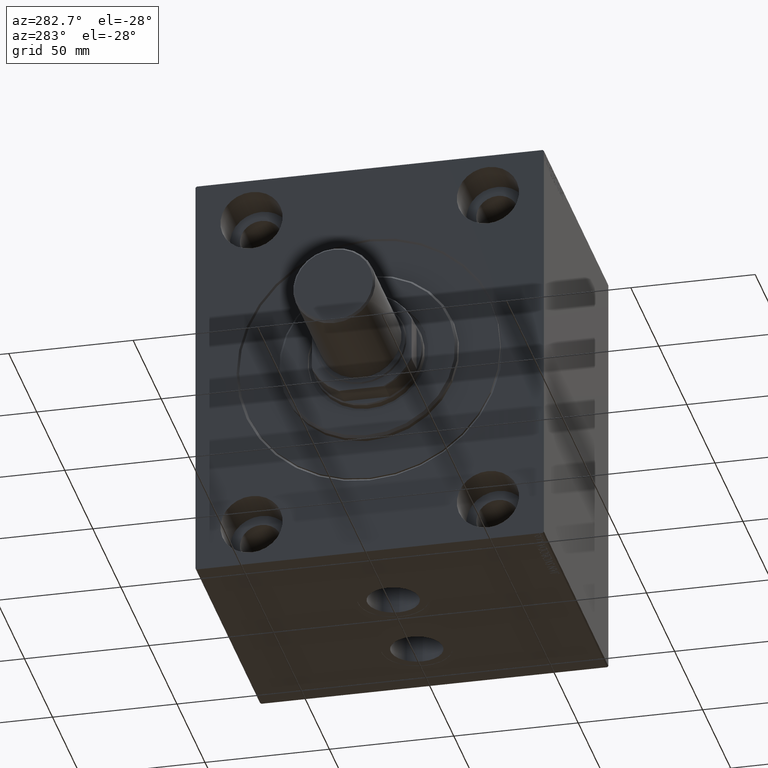
[diagram: clean part render]
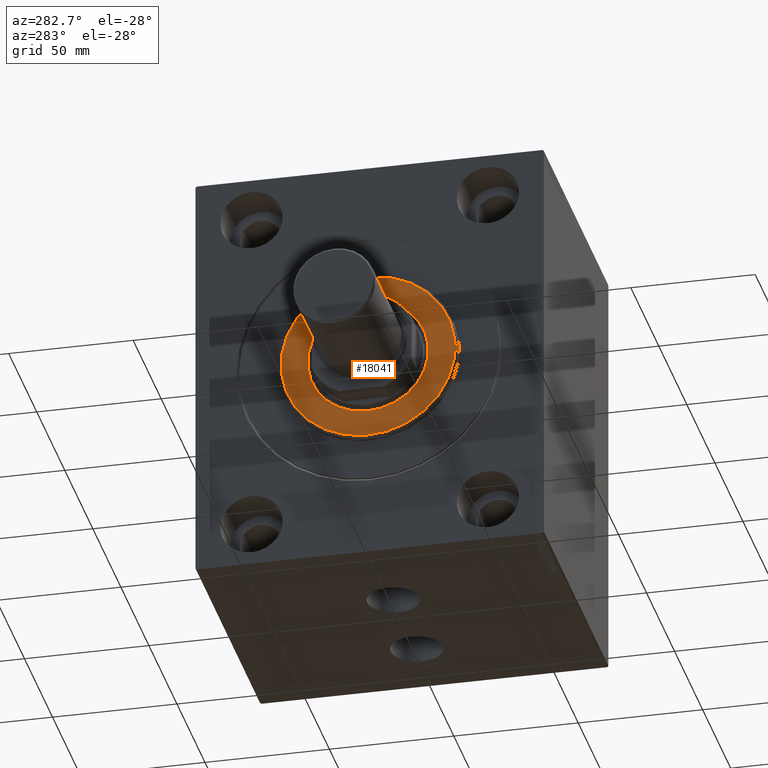
[diagram: same view with one face highlighted and labeled with its STEP entity id]
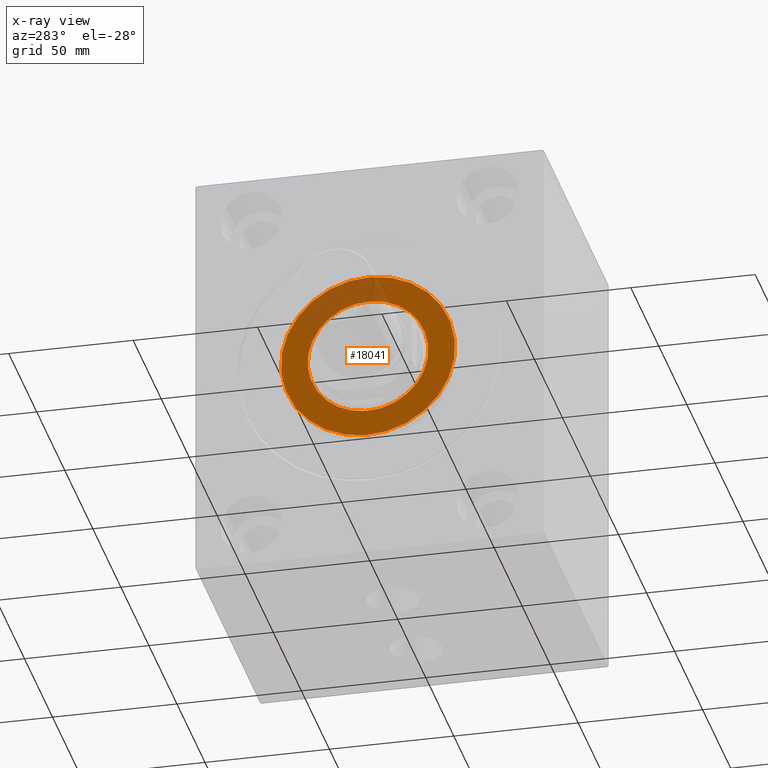
[diagram: x-ray of the same camera — body ghosted, the highlighted face saturated]
A machine part, auxiliary view. The second image highlights one B-rep face of the part: STEP entity #18041.
The next image is the same camera in x-ray: the body ghosted, the highlighted face saturated — about 19% of this face is hidden behind the body in this view.
In plain terms, the highlighted planar face has unit normal (-1, 0, 0).
Its self-contained STEP definition (entity closure, byte-faithful):
#1028 = CARTESIAN_POINT ( 'NONE',  ( 3.000000000000000000, 0.000000000000000000, 0.000000000000000000 ) ) ;
#1789 = EDGE_CURVE ( 'NONE', #14213, #14917, #11184, .T. ) ;
#2422 = CARTESIAN_POINT ( 'NONE',  ( 3.000000000000000000, 0.000000000000000000, 24.25000000000000000 ) ) ;
#3477 = CIRCLE ( 'NONE', #10074, 24.25000000000000000 ) ;
#3989 = EDGE_LOOP ( 'NONE', ( #12858, #10582 ) ) ;
#4014 = DIRECTION ( 'NONE',  ( 1.000000000000000000, -0.000000000000000000, 0.000000000000000000 ) ) ;
#5085 = DIRECTION ( 'NONE',  ( 0.000000000000000000, 0.000000000000000000, -1.000000000000000000 ) ) ;
#5234 = CARTESIAN_POINT ( 'NONE',  ( 3.000000000000000000, 0.000000000000000000, 0.000000000000000000 ) ) ;
#7435 = DIRECTION ( 'NONE',  ( -1.000000000000000000, 0.000000000000000000, -0.000000000000000000 ) ) ;
#7463 = CARTESIAN_POINT ( 'NONE',  ( 3.000000000000000000, 0.000000000000000000, 35.00000000000001421 ) ) ;
#7941 = FACE_OUTER_BOUND ( 'NONE', #3989, .T. ) ;
#8310 = CIRCLE ( 'NONE', #34094, 35.00000000000001421 ) ;
#9855 = ORIENTED_EDGE ( 'NONE', *, *, #19116, .T. ) ;
#10074 = AXIS2_PLACEMENT_3D ( 'NONE', #5234, #7435, #14146 ) ;
#10225 = VERTEX_POINT ( 'NONE', #14515 ) ;
#10582 = ORIENTED_EDGE ( 'NONE', *, *, #1789, .T. ) ;
#11184 = CIRCLE ( 'NONE', #19294, 35.00000000000001421 ) ;
#11630 = DIRECTION ( 'NONE',  ( 0.000000000000000000, 0.000000000000000000, -1.000000000000000000 ) ) ;
#12858 = ORIENTED_EDGE ( 'NONE', *, *, #30886, .T. ) ;
#14146 = DIRECTION ( 'NONE',  ( 0.000000000000000000, 0.000000000000000000, -1.000000000000000000 ) ) ;
#14213 = VERTEX_POINT ( 'NONE', #19950 ) ;
#14515 = CARTESIAN_POINT ( 'NONE',  ( 3.000000000000000000, 2.969768487932331287E-15, -24.25000000000000000 ) ) ;
#14917 = VERTEX_POINT ( 'NONE', #7463 ) ;
#18041 = ADVANCED_FACE ( 'NONE', ( #7941, #43432 ), #36053, .T. ) ;
#19116 = EDGE_CURVE ( 'NONE', #10225, #23253, #3477, .T. ) ;
#19294 = AXIS2_PLACEMENT_3D ( 'NONE', #25841, #36655, #5085 ) ;
#19709 = CARTESIAN_POINT ( 'NONE',  ( 3.000000000000000000, 0.000000000000000000, 0.000000000000000000 ) ) ;
#19950 = CARTESIAN_POINT ( 'NONE',  ( 3.000000000000000000, 4.347496136973104859E-15, -35.00000000000001421 ) ) ;
#21304 = DIRECTION ( 'NONE',  ( 0.000000000000000000, 0.000000000000000000, -1.000000000000000000 ) ) ;
#21602 = CIRCLE ( 'NONE', #27529, 24.25000000000000000 ) ;
#21971 = CARTESIAN_POINT ( 'NONE',  ( 3.000000000000000000, 0.000000000000000000, 0.000000000000000000 ) ) ;
#23253 = VERTEX_POINT ( 'NONE', #2422 ) ;
#25841 = CARTESIAN_POINT ( 'NONE',  ( 3.000000000000000000, 0.000000000000000000, 0.000000000000000000 ) ) ;
#27529 = AXIS2_PLACEMENT_3D ( 'NONE', #19709, #44821, #30552 ) ;
#30552 = DIRECTION ( 'NONE',  ( 0.000000000000000000, 0.000000000000000000, -1.000000000000000000 ) ) ;
#30590 = EDGE_LOOP ( 'NONE', ( #33116, #9855 ) ) ;
#30886 = EDGE_CURVE ( 'NONE', #14917, #14213, #8310, .T. ) ;
#33116 = ORIENTED_EDGE ( 'NONE', *, *, #35718, .T. ) ;
#34094 = AXIS2_PLACEMENT_3D ( 'NONE', #21971, #4014, #21304 ) ;
#35093 = AXIS2_PLACEMENT_3D ( 'NONE', #1028, #43211, #11630 ) ;
#35718 = EDGE_CURVE ( 'NONE', #23253, #10225, #21602, .T. ) ;
#36053 = PLANE ( 'NONE',  #35093 ) ;
#36655 = DIRECTION ( 'NONE',  ( 1.000000000000000000, -0.000000000000000000, 0.000000000000000000 ) ) ;
#43211 = DIRECTION ( 'NONE',  ( 1.000000000000000000, -0.000000000000000000, 0.000000000000000000 ) ) ;
#43432 = FACE_BOUND ( 'NONE', #30590, .T. ) ;
#44821 = DIRECTION ( 'NONE',  ( -1.000000000000000000, 0.000000000000000000, -0.000000000000000000 ) ) ;